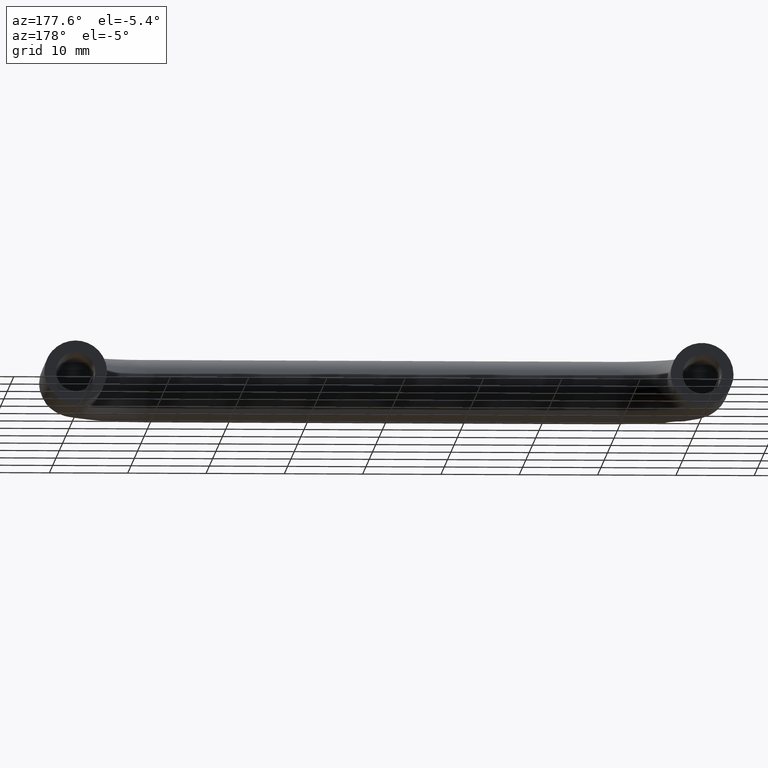
[diagram: clean part render]
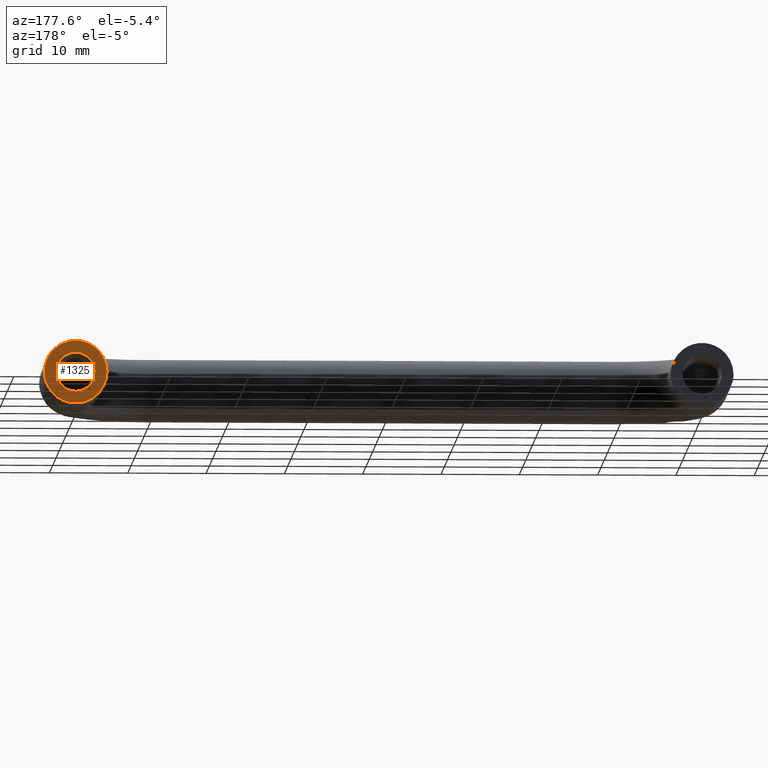
[diagram: same view with one face highlighted and labeled with its STEP entity id]
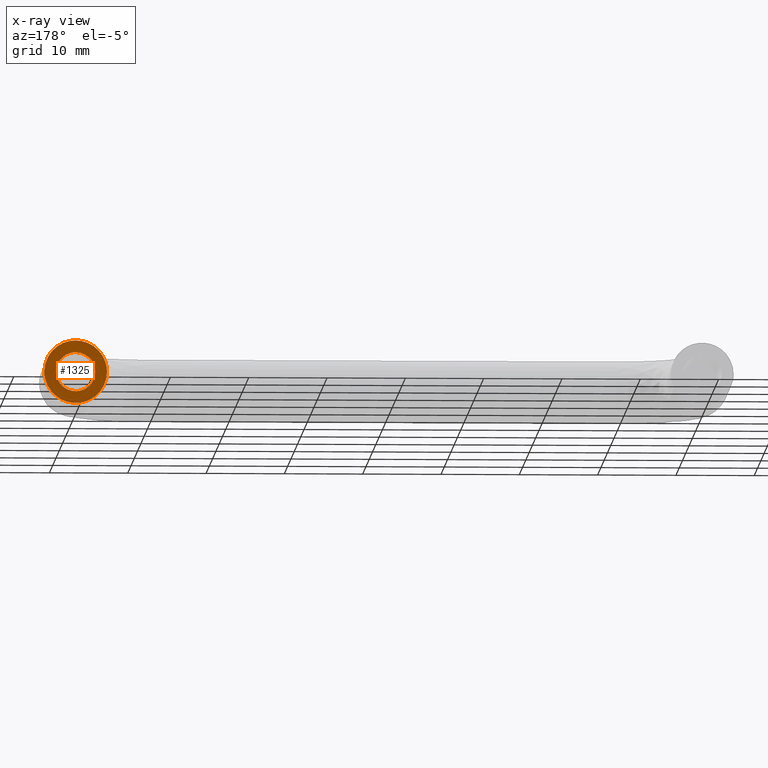
[diagram: x-ray of the same camera — body ghosted, the highlighted face saturated]
A machine part, auxiliary view. The second image highlights one B-rep face of the part: STEP entity #1325.
The next image is the same camera in x-ray: the body ghosted, the highlighted face saturated — about 0% of this face is hidden behind the body in this view.
In plain terms, the highlighted face is a freeform B-spline surface patch.
Its self-contained STEP definition (entity closure, byte-faithful):
#261=CARTESIAN_POINT('',(77.507706665686783,3.330669E-016,0.196147739568638));
#262=VERTEX_POINT('',#261);
#268=CARTESIAN_POINT('',(80.0,0.0,2.500000000000000));
#269=VERTEX_POINT('',#268);
#270=CARTESIAN_POINT('',(80.0,0.0,2.500000000000000));
#271=CARTESIAN_POINT('',(77.689023771317721,0.0,2.500000000000000));
#272=CARTESIAN_POINT('',(77.507706665686783,3.330669E-016,0.196147739568638));
#280=(BOUNDED_CURVE()B_SPLINE_CURVE(2,(#270,#271,#272),.UNSPECIFIED.,.F.,.U.)B_SPLINE_CURVE_WITH_KNOTS((3,3),(0.0,0.236331300598510),.UNSPECIFIED.)CURVE()GEOMETRIC_REPRESENTATION_ITEM()RATIONAL_B_SPLINE_CURVE((1.0,0.723120658645331,0.969723356100324))REPRESENTATION_ITEM(''));
#281=EDGE_CURVE('',#269,#262,#280,.T.);
#283=CARTESIAN_POINT('',(82.492293334313217,3.330669E-016,-0.196147739568638));
#284=VERTEX_POINT('',#283);
#285=CARTESIAN_POINT('',(82.492293334313217,3.330669E-016,-0.196147739568638));
#286=CARTESIAN_POINT('',(82.499999999999986,0.0,-0.098225267769355));
#287=CARTESIAN_POINT('',(82.500000000000000,0.0,0.0));
#288=CARTESIAN_POINT('',(82.500000000000000,0.0,2.500000000000000));
#289=CARTESIAN_POINT('',(80.0,0.0,2.500000000000000));
#297=(BOUNDED_CURVE()B_SPLINE_CURVE(2,(#285,#286,#287,#288,#289),.UNSPECIFIED.,.F.,.U.)B_SPLINE_CURVE_WITH_KNOTS((3,2,3),(0.736331300598510,0.750000000000000,1.0),.UNSPECIFIED.)CURVE()GEOMETRIC_REPRESENTATION_ITEM()RATIONAL_B_SPLINE_CURVE((0.969723356100324,0.983986122541216,1.0,0.707106781186548,1.0))REPRESENTATION_ITEM(''));
#298=EDGE_CURVE('',#284,#269,#297,.T.);
#374=CARTESIAN_POINT('',(80.0,0.0,-2.500000000000000));
#375=VERTEX_POINT('',#374);
#376=CARTESIAN_POINT('',(80.0,0.0,-2.500000000000000));
#377=CARTESIAN_POINT('',(82.310976228682250,0.0,-2.500000000000000));
#378=CARTESIAN_POINT('',(82.492293334313217,3.330669E-016,-0.196147739568638));
#386=(BOUNDED_CURVE()B_SPLINE_CURVE(2,(#376,#377,#378),.UNSPECIFIED.,.F.,.U.)B_SPLINE_CURVE_WITH_KNOTS((3,3),(0.500000000000000,0.736331300598509),.UNSPECIFIED.)CURVE()GEOMETRIC_REPRESENTATION_ITEM()RATIONAL_B_SPLINE_CURVE((1.0,0.723120658645332,0.969723356100322))REPRESENTATION_ITEM(''));
#387=EDGE_CURVE('',#375,#284,#386,.T.);
#389=CARTESIAN_POINT('',(77.507706665686783,3.330669E-016,0.196147739568638));
#390=CARTESIAN_POINT('',(77.500000000000000,0.0,0.098225267769355));
#391=CARTESIAN_POINT('',(77.500000000000000,0.0,0.0));
#392=CARTESIAN_POINT('',(77.500000000000014,0.0,-2.500000000000000));
#393=CARTESIAN_POINT('',(80.0,0.0,-2.500000000000000));
#401=(BOUNDED_CURVE()B_SPLINE_CURVE(2,(#389,#390,#391,#392,#393),.UNSPECIFIED.,.F.,.U.)B_SPLINE_CURVE_WITH_KNOTS((3,2,3),(0.236331300598510,0.250000000000000,0.500000000000000),.UNSPECIFIED.)CURVE()GEOMETRIC_REPRESENTATION_ITEM()RATIONAL_B_SPLINE_CURVE((0.969723356100324,0.983986122541217,1.0,0.707106781186548,1.0))REPRESENTATION_ITEM(''));
#402=EDGE_CURVE('',#262,#375,#401,.T.);
#496=CARTESIAN_POINT('',(82.995824313989800,9.978129E-015,2.650478575597776));
#497=VERTEX_POINT('',#496);
#503=CARTESIAN_POINT('',(76.0,1.040834E-014,0.0));
#504=VERTEX_POINT('',#503);
#505=CARTESIAN_POINT('',(82.995824313989786,9.978129E-015,2.650478575597777));
#506=CARTESIAN_POINT('',(81.801869913532229,1.040834E-014,4.0));
#507=CARTESIAN_POINT('',(80.0,1.040834E-014,4.0));
#508=CARTESIAN_POINT('',(76.0,1.040834E-014,4.000000000000000));
#509=CARTESIAN_POINT('',(76.0,1.040834E-014,0.0));
#517=(BOUNDED_CURVE()B_SPLINE_CURVE(2,(#505,#506,#507,#508,#509),.UNSPECIFIED.,.F.,.U.)B_SPLINE_CURVE_WITH_KNOTS((3,2,3),(0.615779806528000,0.750000000000000,1.0),.UNSPECIFIED.)CURVE()GEOMETRIC_REPRESENTATION_ITEM()RATIONAL_B_SPLINE_CURVE((0.854350172316343,0.842751262016887,1.0,0.707106781186548,1.0))REPRESENTATION_ITEM(''));
#518=EDGE_CURVE('',#497,#504,#517,.T.);
#520=CARTESIAN_POINT('',(82.286842456896807,1.080236E-014,-3.281821381083093));
#521=VERTEX_POINT('',#520);
#522=CARTESIAN_POINT('',(76.0,1.040834E-014,0.0));
#523=CARTESIAN_POINT('',(76.0,1.040834E-014,-4.000000000000000));
#524=CARTESIAN_POINT('',(80.0,1.040834E-014,-4.0));
#525=CARTESIAN_POINT('',(81.256192566943326,1.040834E-014,-4.0));
#526=CARTESIAN_POINT('',(82.286842456896807,1.080236E-014,-3.281821381083093));
#534=(BOUNDED_CURVE()B_SPLINE_CURVE(2,(#522,#523,#524,#525,#526),.UNSPECIFIED.,.F.,.U.)B_SPLINE_CURVE_WITH_KNOTS((3,2,3),(0.0,0.250000000000000,0.348251885361446),.UNSPECIFIED.)CURVE()GEOMETRIC_REPRESENTATION_ITEM()RATIONAL_B_SPLINE_CURVE((1.0,0.707106781186548,1.0,0.884890756167983,0.860259114168175))REPRESENTATION_ITEM(''));
#535=EDGE_CURVE('',#504,#521,#534,.T.);
#579=CARTESIAN_POINT('',(84.0,1.040834E-014,0.0));
#580=VERTEX_POINT('',#579);
#581=CARTESIAN_POINT('',(82.286842456896807,1.080236E-014,-3.281821381083093));
#582=CARTESIAN_POINT('',(84.000000000000014,1.040834E-014,-2.088057009412296));
#583=CARTESIAN_POINT('',(84.0,1.040834E-014,0.0));
#591=(BOUNDED_CURVE()B_SPLINE_CURVE(2,(#581,#582,#583),.UNSPECIFIED.,.F.,.U.)B_SPLINE_CURVE_WITH_KNOTS((3,3),(0.348251885361446,0.500000000000000),.UNSPECIFIED.)CURVE()GEOMETRIC_REPRESENTATION_ITEM()RATIONAL_B_SPLINE_CURVE((0.860259114168175,0.822216025018564,1.0))REPRESENTATION_ITEM(''));
#592=EDGE_CURVE('',#521,#580,#591,.T.);
#594=CARTESIAN_POINT('',(84.0,1.040834E-014,0.0));
#595=CARTESIAN_POINT('',(84.000000000000014,1.040834E-014,1.515463200125099));
#596=CARTESIAN_POINT('',(82.995824313989786,9.978129E-015,2.650478575597777));
#604=(BOUNDED_CURVE()B_SPLINE_CURVE(2,(#594,#595,#596),.UNSPECIFIED.,.F.,.U.)B_SPLINE_CURVE_WITH_KNOTS((3,3),(0.500000000000000,0.615779806528000),.UNSPECIFIED.)CURVE()GEOMETRIC_REPRESENTATION_ITEM()RATIONAL_B_SPLINE_CURVE((1.0,0.864355519169661,0.854350172316343))REPRESENTATION_ITEM(''));
#605=EDGE_CURVE('',#580,#497,#604,.T.);
#1308=CARTESIAN_POINT('',(84.399599984494444,1.040834E-014,-4.397862096923449));
#1309=CARTESIAN_POINT('',(75.600399800928841,1.040834E-014,-4.397862096923449));
#1310=CARTESIAN_POINT('',(84.399599984494444,1.040834E-014,4.396191903251269));
#1311=CARTESIAN_POINT('',(75.600399800928841,1.040834E-014,4.396191903251269));
#1312=B_SPLINE_SURFACE_WITH_KNOTS('',1,1,((#1308,#1310),(#1309,#1311)),.UNSPECIFIED.,.F.,.F.,.U.,(2,2),(2,2),(0.0,8.799200183565603),(0.0,8.794054000174718),.UNSPECIFIED.);
#1313=ORIENTED_EDGE('',*,*,#518,.F.);
#1314=ORIENTED_EDGE('',*,*,#605,.F.);
#1315=ORIENTED_EDGE('',*,*,#592,.F.);
#1316=ORIENTED_EDGE('',*,*,#535,.F.);
#1317=EDGE_LOOP('',(#1313,#1314,#1315,#1316));
#1318=FACE_OUTER_BOUND('',#1317,.T.);
#1319=ORIENTED_EDGE('',*,*,#387,.T.);
#1320=ORIENTED_EDGE('',*,*,#298,.T.);
#1321=ORIENTED_EDGE('',*,*,#281,.T.);
#1322=ORIENTED_EDGE('',*,*,#402,.T.);
#1323=EDGE_LOOP('',(#1319,#1320,#1321,#1322));
#1324=FACE_BOUND('',#1323,.T.);
#1325=ADVANCED_FACE('',(#1318,#1324),#1312,.T.);